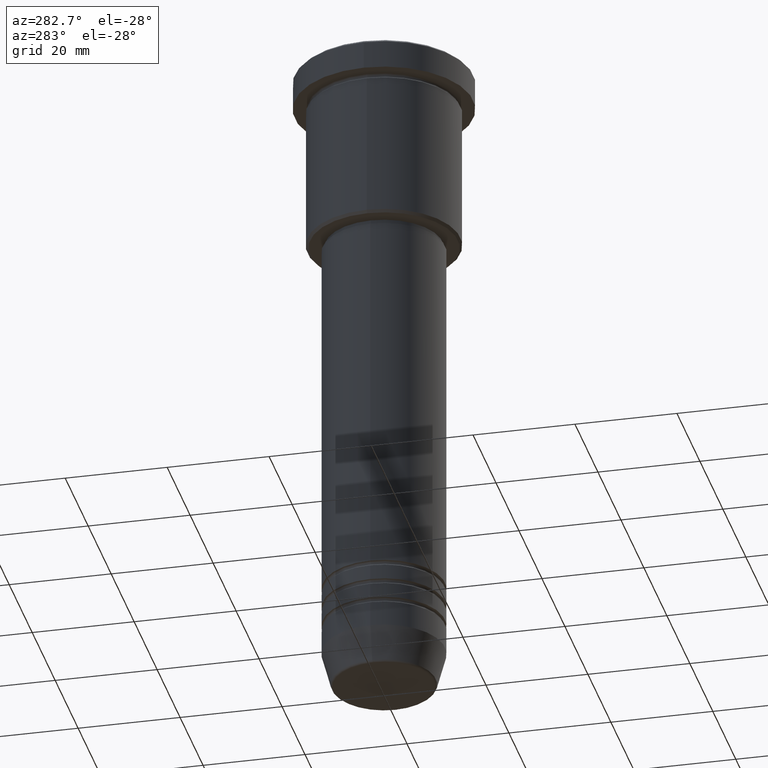
[diagram: clean part render]
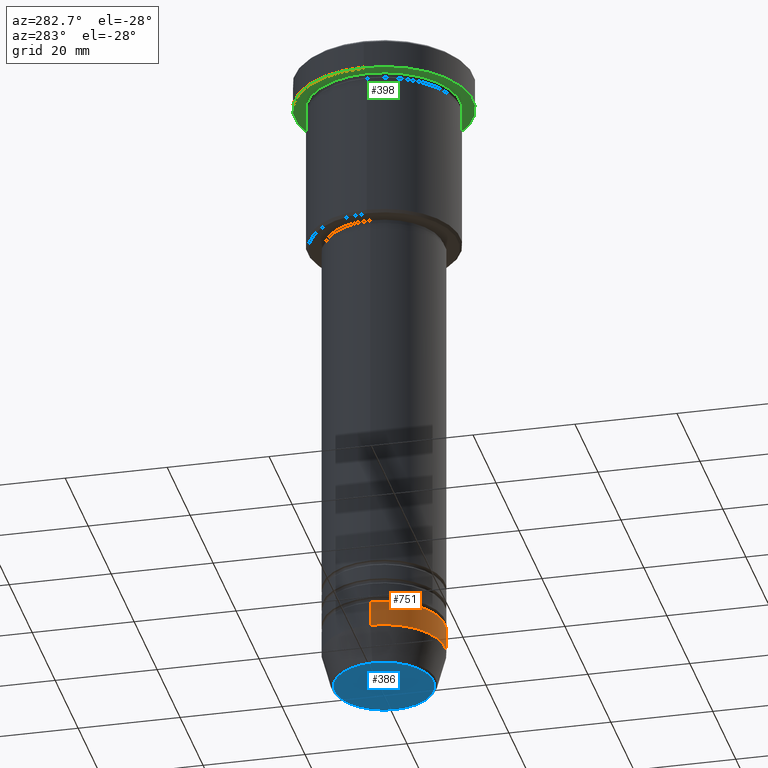
[diagram: same view with three faces highlighted in distinct colors, each labeled with its STEP entity id]
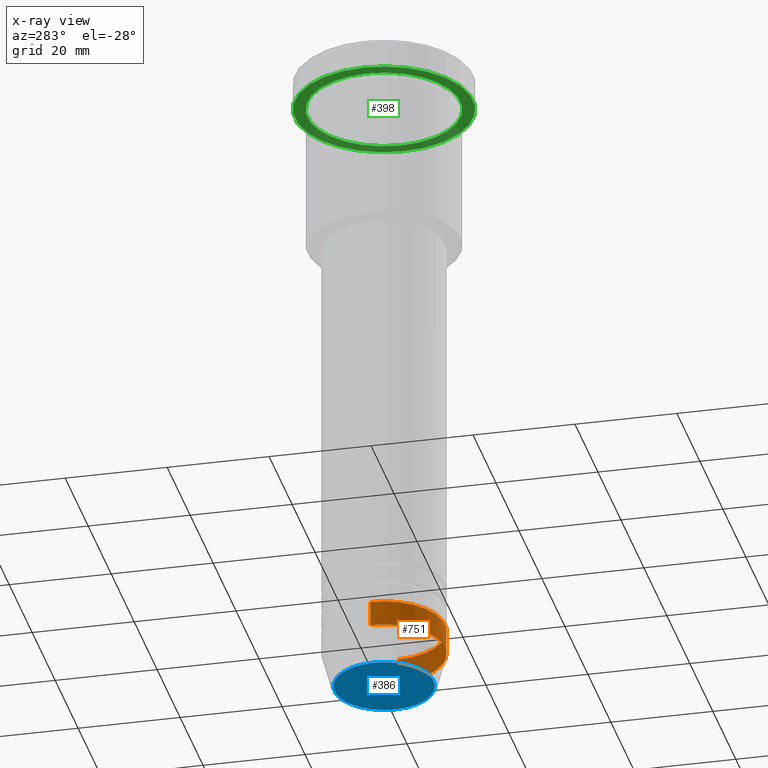
[diagram: x-ray of the same camera — body ghosted, the three highlighted faces saturated]
A machine part, auxiliary view with three faces highlighted in distinct colors.
The next image is the same camera in x-ray (body ghosted, the three faces saturated) — at least one of them is partly hidden behind the body in this view.
Their STEP definitions:

[orange] entity #751 — the highlighted cylindrical surface (partial cylindrical patch) has radius 12 mm, axis along (-0, -0, 1).
#8 = CARTESIAN_POINT ( 'NONE',  ( -12.00000000000000000, 1.469576158976823947E-15, 0.000000000000000000 ) ) ;
#20 = VERTEX_POINT ( 'NONE', #1011 ) ;
#80 = CIRCLE ( 'NONE', #874, 12.00000000000000000 ) ;
#95 = DIRECTION ( 'NONE',  ( -0.000000000000000000, -0.000000000000000000, 1.000000000000000000 ) ) ;
#101 = EDGE_CURVE ( 'NONE', #755, #20, #864, .T. ) ;
#139 = AXIS2_PLACEMENT_3D ( 'NONE', #1106, #716, #836 ) ;
#146 = DIRECTION ( 'NONE',  ( 1.000000000000000000, 0.000000000000000000, 0.000000000000000000 ) ) ;
#244 = CYLINDRICAL_SURFACE ( 'NONE', #139, 12.00000000000000000 ) ;
#246 = CARTESIAN_POINT ( 'NONE',  ( -12.00000000000000000, 1.469576158976823947E-15, -124.0000000000000000 ) ) ;
#284 = FACE_OUTER_BOUND ( 'NONE', #803, .T. ) ;
#312 = EDGE_CURVE ( 'NONE', #20, #992, #702, .T. ) ;
#326 = CARTESIAN_POINT ( 'NONE',  ( 12.00000000000000000, 0.000000000000000000, 0.000000000000000000 ) ) ;
#360 = AXIS2_PLACEMENT_3D ( 'NONE', #634, #95, #820 ) ;
#406 = ORIENTED_EDGE ( 'NONE', *, *, #312, .T. ) ;
#502 = EDGE_CURVE ( 'NONE', #755, #957, #1099, .T. ) ;
#596 = VECTOR ( 'NONE', #616, 1000.000000000000000 ) ;
#616 = DIRECTION ( 'NONE',  ( -0.000000000000000000, -0.000000000000000000, 1.000000000000000000 ) ) ;
#634 = CARTESIAN_POINT ( 'NONE',  ( 0.000000000000000000, 0.000000000000000000, -124.0000000000000000 ) ) ;
#636 = DIRECTION ( 'NONE',  ( -0.000000000000000000, -0.000000000000000000, 1.000000000000000000 ) ) ;
#696 = EDGE_CURVE ( 'NONE', #957, #992, #80, .T. ) ;
#702 = LINE ( 'NONE', #326, #596 ) ;
#716 = DIRECTION ( 'NONE',  ( -0.000000000000000000, -0.000000000000000000, 1.000000000000000000 ) ) ;
#751 = ADVANCED_FACE ( 'NONE', ( #284 ), #244, .T. ) ;
#753 = ORIENTED_EDGE ( 'NONE', *, *, #101, .T. ) ;
#755 = VERTEX_POINT ( 'NONE', #246 ) ;
#803 = EDGE_LOOP ( 'NONE', ( #891, #753, #406, #1108 ) ) ;
#820 = DIRECTION ( 'NONE',  ( 1.000000000000000000, 0.000000000000000000, 0.000000000000000000 ) ) ;
#836 = DIRECTION ( 'NONE',  ( 1.000000000000000000, 0.000000000000000000, 0.000000000000000000 ) ) ;
#856 = CARTESIAN_POINT ( 'NONE',  ( -12.00000000000000000, 1.469576158976823947E-15, -119.0000000000000000 ) ) ;
#864 = CIRCLE ( 'NONE', #360, 12.00000000000000000 ) ;
#874 = AXIS2_PLACEMENT_3D ( 'NONE', #963, #951, #146 ) ;
#891 = ORIENTED_EDGE ( 'NONE', *, *, #502, .F. ) ;
#951 = DIRECTION ( 'NONE',  ( -0.000000000000000000, -0.000000000000000000, 1.000000000000000000 ) ) ;
#957 = VERTEX_POINT ( 'NONE', #856 ) ;
#963 = CARTESIAN_POINT ( 'NONE',  ( 0.000000000000000000, 0.000000000000000000, -119.0000000000000000 ) ) ;
#992 = VERTEX_POINT ( 'NONE', #1144 ) ;
#1011 = CARTESIAN_POINT ( 'NONE',  ( 12.00000000000000000, 0.000000000000000000, -124.0000000000000000 ) ) ;
#1099 = LINE ( 'NONE', #8, #1157 ) ;
#1106 = CARTESIAN_POINT ( 'NONE',  ( 0.000000000000000000, 0.000000000000000000, 0.000000000000000000 ) ) ;
#1108 = ORIENTED_EDGE ( 'NONE', *, *, #696, .F. ) ;
#1144 = CARTESIAN_POINT ( 'NONE',  ( 12.00000000000000000, 0.000000000000000000, -119.0000000000000000 ) ) ;
#1157 = VECTOR ( 'NONE', #636, 1000.000000000000000 ) ;

[blue] entity #386 — the highlighted planar face has unit normal (0, -0, 1).
#81 = DIRECTION ( 'NONE',  ( 1.000000000000000000, 0.000000000000000000, 0.000000000000000000 ) ) ;
#233 = DIRECTION ( 'NONE',  ( 1.000000000000000000, 0.000000000000000000, 0.000000000000000000 ) ) ;
#336 = CARTESIAN_POINT ( 'NONE',  ( 0.000000000000000000, 0.000000000000000000, -131.0000000000000000 ) ) ;
#347 = DIRECTION ( 'NONE',  ( 0.000000000000000000, 0.000000000000000000, -1.000000000000000000 ) ) ;
#386 = ADVANCED_FACE ( 'NONE', ( #622 ), #782, .F. ) ;
#453 = ORIENTED_EDGE ( 'NONE', *, *, #1034, .T. ) ;
#478 = VERTEX_POINT ( 'NONE', #822 ) ;
#485 = AXIS2_PLACEMENT_3D ( 'NONE', #509, #959, #1153 ) ;
#509 = CARTESIAN_POINT ( 'NONE',  ( 0.000000000000000000, 0.000000000000000000, -131.0000000000000000 ) ) ;
#522 = CARTESIAN_POINT ( 'NONE',  ( 0.000000000000000000, 0.000000000000000000, -131.0000000000000000 ) ) ;
#593 = CIRCLE ( 'NONE', #485, 9.740692158992654726 ) ;
#622 = FACE_OUTER_BOUND ( 'NONE', #659, .T. ) ;
#659 = EDGE_LOOP ( 'NONE', ( #453, #1001 ) ) ;
#668 = CARTESIAN_POINT ( 'NONE',  ( 9.740692158992654726, 0.000000000000000000, -131.0000000000000000 ) ) ;
#701 = VERTEX_POINT ( 'NONE', #668 ) ;
#779 = AXIS2_PLACEMENT_3D ( 'NONE', #522, #347, #81 ) ;
#782 = PLANE ( 'NONE',  #980 ) ;
#807 = EDGE_CURVE ( 'NONE', #478, #701, #1058, .T. ) ;
#822 = CARTESIAN_POINT ( 'NONE',  ( -9.740692158992654726, 1.222463696683474604E-15, -131.0000000000000000 ) ) ;
#959 = DIRECTION ( 'NONE',  ( 0.000000000000000000, 0.000000000000000000, -1.000000000000000000 ) ) ;
#980 = AXIS2_PLACEMENT_3D ( 'NONE', #336, #1063, #233 ) ;
#1001 = ORIENTED_EDGE ( 'NONE', *, *, #807, .T. ) ;
#1034 = EDGE_CURVE ( 'NONE', #701, #478, #593, .T. ) ;
#1058 = CIRCLE ( 'NONE', #779, 9.740692158992654726 ) ;
#1063 = DIRECTION ( 'NONE',  ( 0.000000000000000000, -0.000000000000000000, 1.000000000000000000 ) ) ;
#1153 = DIRECTION ( 'NONE',  ( 1.000000000000000000, 0.000000000000000000, 0.000000000000000000 ) ) ;

[green] entity #398 — the highlighted planar face has unit normal (0, 0, -1).
#7 = CIRCLE ( 'NONE', #1098, 17.50000000000000000 ) ;
#24 = DIRECTION ( 'NONE',  ( -0.000000000000000000, -0.000000000000000000, 1.000000000000000000 ) ) ;
#44 = AXIS2_PLACEMENT_3D ( 'NONE', #1166, #545, #608 ) ;
#59 = EDGE_LOOP ( 'NONE', ( #395, #871 ) ) ;
#75 = FACE_OUTER_BOUND ( 'NONE', #59, .T. ) ;
#92 = DIRECTION ( 'NONE',  ( 1.000000000000000000, 0.000000000000000000, 0.000000000000000000 ) ) ;
#168 = VERTEX_POINT ( 'NONE', #763 ) ;
#206 = CARTESIAN_POINT ( 'NONE',  ( 15.00000000000000000, 1.836970198721029589E-15, -5.999999999999994671 ) ) ;
#209 = VERTEX_POINT ( 'NONE', #400 ) ;
#215 = AXIS2_PLACEMENT_3D ( 'NONE', #380, #24, #283 ) ;
#283 = DIRECTION ( 'NONE',  ( -1.000000000000000000, 0.000000000000000000, 0.000000000000000000 ) ) ;
#329 = CARTESIAN_POINT ( 'NONE',  ( 0.000000000000000000, 17.50000000000000000, -5.999999999999995559 ) ) ;
#353 = DIRECTION ( 'NONE',  ( -0.000000000000000000, -0.000000000000000000, 1.000000000000000000 ) ) ;
#364 = VERTEX_POINT ( 'NONE', #206 ) ;
#380 = CARTESIAN_POINT ( 'NONE',  ( 0.000000000000000000, 0.000000000000000000, -5.999999999999995559 ) ) ;
#395 = ORIENTED_EDGE ( 'NONE', *, *, #621, .F. ) ;
#396 = AXIS2_PLACEMENT_3D ( 'NONE', #329, #599, #882 ) ;
#398 = ADVANCED_FACE ( 'NONE', ( #1087, #75 ), #978, .T. ) ;
#400 = CARTESIAN_POINT ( 'NONE',  ( -17.50000000000000000, 2.143131898507868248E-15, -5.999999999999995559 ) ) ;
#429 = DIRECTION ( 'NONE',  ( 1.000000000000000000, 0.000000000000000000, 0.000000000000000000 ) ) ;
#535 = ORIENTED_EDGE ( 'NONE', *, *, #1160, .T. ) ;
#539 = CIRCLE ( 'NONE', #44, 15.00000000000000000 ) ;
#545 = DIRECTION ( 'NONE',  ( -0.000000000000000000, -0.000000000000000000, 1.000000000000000000 ) ) ;
#559 = EDGE_CURVE ( 'NONE', #364, #925, #754, .T. ) ;
#599 = DIRECTION ( 'NONE',  ( 0.000000000000000000, 0.000000000000000000, -1.000000000000000000 ) ) ;
#608 = DIRECTION ( 'NONE',  ( -1.000000000000000000, 0.000000000000000000, 0.000000000000000000 ) ) ;
#620 = CARTESIAN_POINT ( 'NONE',  ( 0.000000000000000000, 0.000000000000000000, -5.999999999999995559 ) ) ;
#621 = EDGE_CURVE ( 'NONE', #168, #209, #1179, .T. ) ;
#630 = CARTESIAN_POINT ( 'NONE',  ( 0.000000000000000000, 0.000000000000000000, -5.999999999999995559 ) ) ;
#682 = CARTESIAN_POINT ( 'NONE',  ( -15.00000000000000000, 0.000000000000000000, -5.999999999999994671 ) ) ;
#737 = ORIENTED_EDGE ( 'NONE', *, *, #559, .T. ) ;
#740 = EDGE_LOOP ( 'NONE', ( #535, #737 ) ) ;
#754 = CIRCLE ( 'NONE', #215, 15.00000000000000000 ) ;
#763 = CARTESIAN_POINT ( 'NONE',  ( 17.50000000000000000, 0.000000000000000000, -5.999999999999995559 ) ) ;
#871 = ORIENTED_EDGE ( 'NONE', *, *, #887, .F. ) ;
#882 = DIRECTION ( 'NONE',  ( -1.000000000000000000, 0.000000000000000000, -0.000000000000000000 ) ) ;
#887 = EDGE_CURVE ( 'NONE', #209, #168, #7, .T. ) ;
#925 = VERTEX_POINT ( 'NONE', #682 ) ;
#978 = PLANE ( 'NONE',  #396 ) ;
#998 = DIRECTION ( 'NONE',  ( -0.000000000000000000, -0.000000000000000000, 1.000000000000000000 ) ) ;
#1048 = AXIS2_PLACEMENT_3D ( 'NONE', #630, #998, #92 ) ;
#1087 = FACE_BOUND ( 'NONE', #740, .T. ) ;
#1098 = AXIS2_PLACEMENT_3D ( 'NONE', #620, #353, #429 ) ;
#1160 = EDGE_CURVE ( 'NONE', #925, #364, #539, .T. ) ;
#1166 = CARTESIAN_POINT ( 'NONE',  ( 0.000000000000000000, 0.000000000000000000, -5.999999999999995559 ) ) ;
#1179 = CIRCLE ( 'NONE', #1048, 17.50000000000000000 ) ;